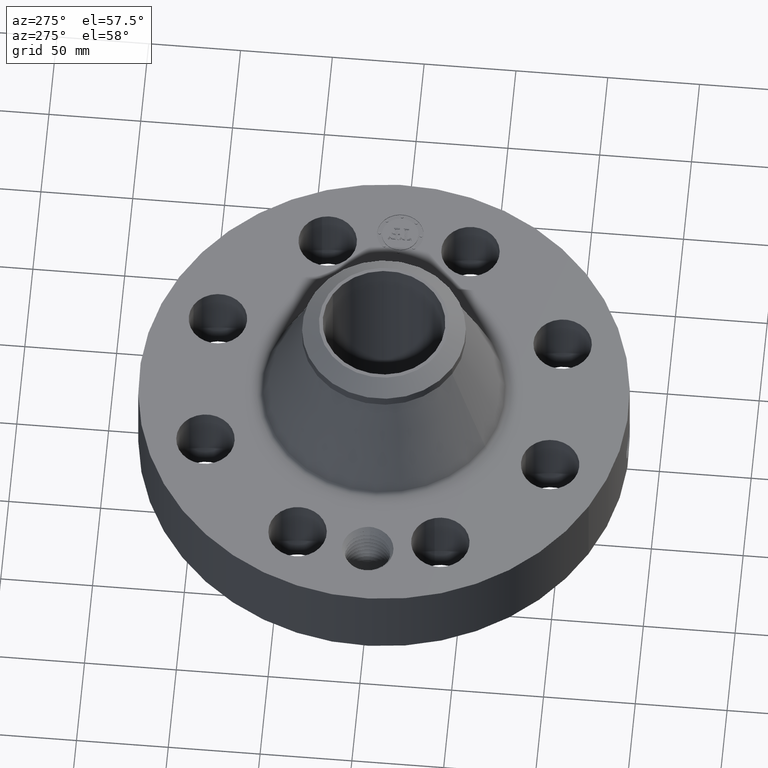
[diagram: clean part render]
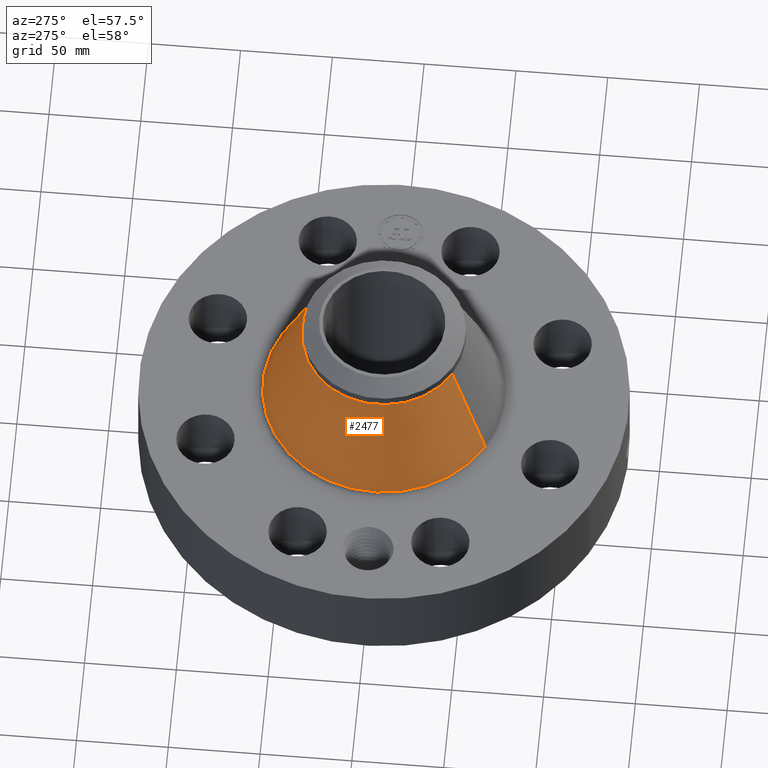
[diagram: same view with one face highlighted and labeled with its STEP entity id]
A machine part, auxiliary view. The second image highlights one B-rep face of the part: STEP entity #2477.
In plain terms, the highlighted conical surface has half-angle 21.44 deg.
Its self-contained STEP definition (entity closure, byte-faithful):
#1827=AXIS2_PLACEMENT_3D('Circle Axis2P3D',#1825,#1826,$) ;
#2438=AXIS2_PLACEMENT_3D('Cone Axis2P3D',#2435,#2436,#2437) ;
#2468=AXIS2_PLACEMENT_3D('Circle Axis2P3D',#2466,#2467,$) ;
#1803=CARTESIAN_POINT('Vertex',(1.24415753478,2.27741509129,2.20613599613)) ;
#1810=CARTESIAN_POINT('Vertex',(-1.24415753478,-2.27741509129,2.20613599613)) ;
#1825=CARTESIAN_POINT('Axis2P3D Location',(0.,0.,2.20613599613)) ;
#2435=CARTESIAN_POINT('Axis2P3D Location',(0.,0.,4.35810975471)) ;
#2440=CARTESIAN_POINT('Line Origine',(1.04157611367,1.9065922873,3.28212287542)) ;
#2444=CARTESIAN_POINT('Vertex',(0.838994692561,1.53576948331,4.35810975471)) ;
#2451=CARTESIAN_POINT('Vertex',(-0.838994692561,-1.53576948331,4.35810975471)) ;
#2454=CARTESIAN_POINT('Line Origine',(-1.04157611367,-1.9065922873,3.28212287542)) ;
#2466=CARTESIAN_POINT('Axis2P3D Location',(0.,0.,4.35810975471)) ;
#1826=DIRECTION('Axis2P3D Direction',(0.,0.,-0.0393700787402)) ;
#2436=DIRECTION('Axis2P3D Direction',(0.,0.,-0.0393700787402)) ;
#2437=DIRECTION('Axis2P3D XDirection',(-0.0188750212049,-0.0345504945626,0.)) ;
#2441=DIRECTION('Vector Direction',(0.00689945002761,0.0126293585621,-0.0366455998946)) ;
#2455=DIRECTION('Vector Direction',(-0.00689945002761,-0.0126293585621,-0.0366455998946)) ;
#2467=DIRECTION('Axis2P3D Direction',(0.,0.,-0.0393700787402)) ;
#2442=VECTOR('Line Direction',#2441,0.0393700787402) ;
#2456=VECTOR('Line Direction',#2455,0.0393700787402) ;
#2472=ORIENTED_EDGE('',*,*,#1829,.F.) ;
#2473=ORIENTED_EDGE('',*,*,#2458,.T.) ;
#2474=ORIENTED_EDGE('',*,*,#2470,.T.) ;
#2475=ORIENTED_EDGE('',*,*,#2446,.F.) ;
#2477=ADVANCED_FACE('PartBody',(#2476),#2439,.T.) ;
#1828=CIRCLE('generated circle',#1827,2.59510066652) ;
#2469=CIRCLE('generated circle',#2468,1.75000000001) ;
#2439=CONICAL_SURFACE('Cone',#2438,1.75000000001,0.374205758258) ;
#1829=EDGE_CURVE('',#1811,#1804,#1828,.T.) ;
#2446=EDGE_CURVE('',#1804,#2445,#2443,.F.) ;
#2458=EDGE_CURVE('',#1811,#2452,#2457,.F.) ;
#2470=EDGE_CURVE('',#2452,#2445,#2469,.T.) ;
#2471=EDGE_LOOP('',(#2472,#2473,#2474,#2475)) ;
#2476=FACE_OUTER_BOUND('',#2471,.T.) ;
#2443=LINE('Line',#2440,#2442) ;
#2457=LINE('Line',#2454,#2456) ;
#1804=VERTEX_POINT('',#1803) ;
#1811=VERTEX_POINT('',#1810) ;
#2445=VERTEX_POINT('',#2444) ;
#2452=VERTEX_POINT('',#2451) ;